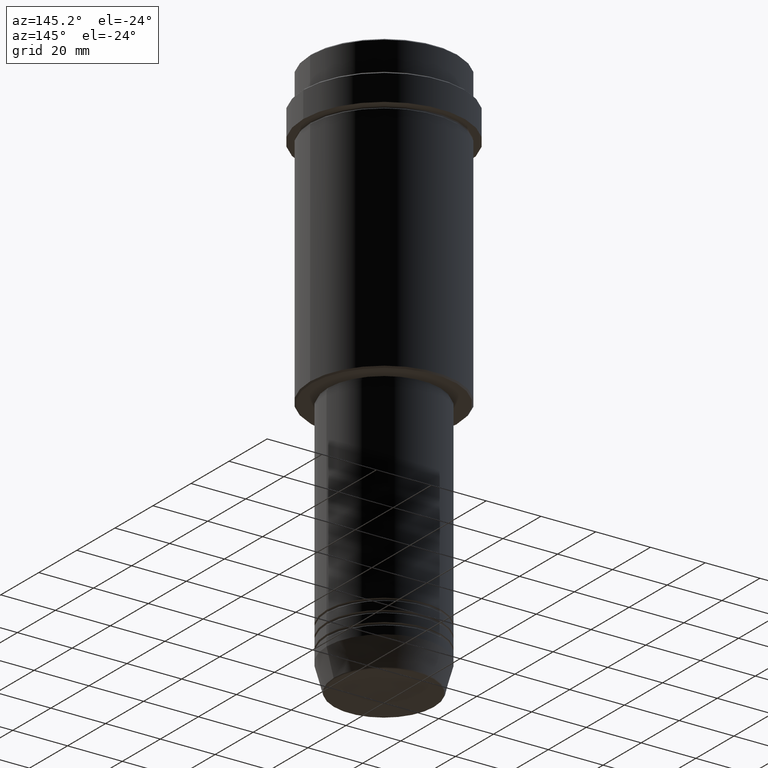
[diagram: clean part render]
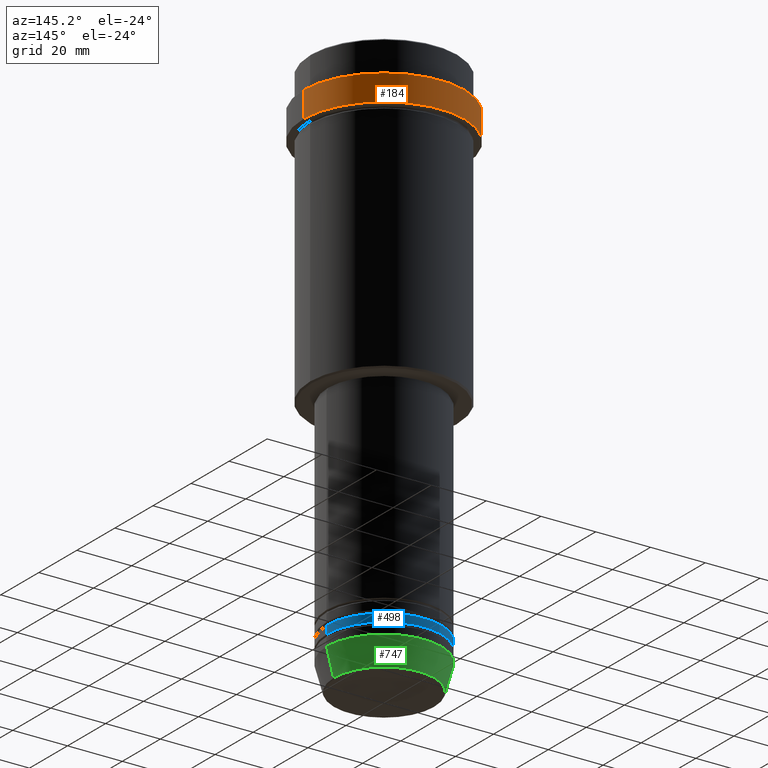
[diagram: same view with three faces highlighted in distinct colors, each labeled with its STEP entity id]
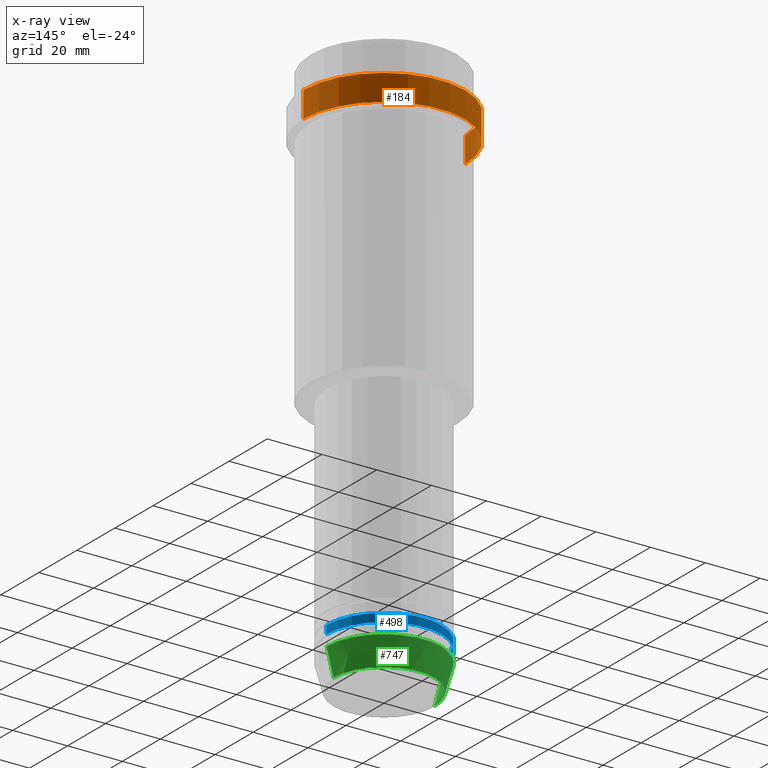
[diagram: x-ray of the same camera — body ghosted, the three highlighted faces saturated]
A machine part, auxiliary view with three faces highlighted in distinct colors.
The next image is the same camera in x-ray (body ghosted, the three faces saturated) — at least one of them is partly hidden behind the body in this view.
Their STEP definitions:

[orange] entity #184 — the highlighted cylindrical surface (partial cylindrical patch) has radius 29.5 mm, axis along (-0, -0, 1).
#12 = DIRECTION ( 'NONE',  ( 1.000000000000000000, 0.000000000000000000, 0.000000000000000000 ) ) ;
#72 = CARTESIAN_POINT ( 'NONE',  ( 0.000000000000000000, 0.000000000000000000, -22.00000000000000711 ) ) ;
#85 = DIRECTION ( 'NONE',  ( -0.000000000000000000, -0.000000000000000000, 1.000000000000000000 ) ) ;
#125 = VERTEX_POINT ( 'NONE', #458 ) ;
#168 = DIRECTION ( 'NONE',  ( 1.000000000000000000, 0.000000000000000000, 0.000000000000000000 ) ) ;
#184 = ADVANCED_FACE ( 'NONE', ( #896 ), #1240, .T. ) ;
#187 = AXIS2_PLACEMENT_3D ( 'NONE', #577, #1340, #168 ) ;
#192 = CIRCLE ( 'NONE', #299, 29.50000000000000000 ) ;
#236 = EDGE_CURVE ( 'NONE', #1013, #917, #1226, .T. ) ;
#262 = ORIENTED_EDGE ( 'NONE', *, *, #1293, .T. ) ;
#276 = AXIS2_PLACEMENT_3D ( 'NONE', #72, #85, #297 ) ;
#297 = DIRECTION ( 'NONE',  ( 1.000000000000000000, 0.000000000000000000, 0.000000000000000000 ) ) ;
#299 = AXIS2_PLACEMENT_3D ( 'NONE', #966, #320, #12 ) ;
#320 = DIRECTION ( 'NONE',  ( 0.000000000000000000, 0.000000000000000000, -1.000000000000000000 ) ) ;
#330 = VERTEX_POINT ( 'NONE', #1268 ) ;
#352 = DIRECTION ( 'NONE',  ( -0.000000000000000000, -0.000000000000000000, 1.000000000000000000 ) ) ;
#380 = CARTESIAN_POINT ( 'NONE',  ( -29.50000000000000000, 3.612708057484691604E-15, 0.000000000000000000 ) ) ;
#458 = CARTESIAN_POINT ( 'NONE',  ( 29.50000000000000000, 0.000000000000000000, -12.50000000000000355 ) ) ;
#496 = ORIENTED_EDGE ( 'NONE', *, *, #568, .F. ) ;
#568 = EDGE_CURVE ( 'NONE', #1013, #125, #789, .T. ) ;
#577 = CARTESIAN_POINT ( 'NONE',  ( 0.000000000000000000, 0.000000000000000000, 0.000000000000000000 ) ) ;
#651 = CARTESIAN_POINT ( 'NONE',  ( -29.49999999999999645, 3.612708057484690815E-15, -22.00000000000000711 ) ) ;
#789 = LINE ( 'NONE', #1016, #970 ) ;
#835 = ORIENTED_EDGE ( 'NONE', *, *, #236, .T. ) ;
#896 = FACE_OUTER_BOUND ( 'NONE', #1308, .T. ) ;
#917 = VERTEX_POINT ( 'NONE', #651 ) ;
#954 = DIRECTION ( 'NONE',  ( -0.000000000000000000, -0.000000000000000000, 1.000000000000000000 ) ) ;
#966 = CARTESIAN_POINT ( 'NONE',  ( 0.000000000000000000, 0.000000000000000000, -12.50000000000000355 ) ) ;
#970 = VECTOR ( 'NONE', #352, 1000.000000000000000 ) ;
#985 = CARTESIAN_POINT ( 'NONE',  ( 29.49999999999999645, 0.000000000000000000, -22.00000000000000711 ) ) ;
#1013 = VERTEX_POINT ( 'NONE', #985 ) ;
#1016 = CARTESIAN_POINT ( 'NONE',  ( 29.50000000000000000, 0.000000000000000000, 0.000000000000000000 ) ) ;
#1037 = ORIENTED_EDGE ( 'NONE', *, *, #1197, .T. ) ;
#1197 = EDGE_CURVE ( 'NONE', #917, #330, #1375, .T. ) ;
#1207 = VECTOR ( 'NONE', #954, 1000.000000000000000 ) ;
#1226 = CIRCLE ( 'NONE', #276, 29.49999999999999645 ) ;
#1240 = CYLINDRICAL_SURFACE ( 'NONE', #187, 29.50000000000000000 ) ;
#1268 = CARTESIAN_POINT ( 'NONE',  ( -29.50000000000000000, 3.612708057484691604E-15, -12.50000000000000355 ) ) ;
#1293 = EDGE_CURVE ( 'NONE', #330, #125, #192, .T. ) ;
#1308 = EDGE_LOOP ( 'NONE', ( #835, #1037, #262, #496 ) ) ;
#1340 = DIRECTION ( 'NONE',  ( -0.000000000000000000, -0.000000000000000000, 1.000000000000000000 ) ) ;
#1375 = LINE ( 'NONE', #380, #1207 ) ;

[blue] entity #498 — the highlighted cylindrical surface (partial cylindrical patch) has radius 21 mm, axis along (-0, -0, 1).
#86 = ORIENTED_EDGE ( 'NONE', *, *, #287, .F. ) ;
#148 = DIRECTION ( 'NONE',  ( 1.000000000000000000, 0.000000000000000000, 0.000000000000000000 ) ) ;
#165 = AXIS2_PLACEMENT_3D ( 'NONE', #867, #315, #759 ) ;
#166 = AXIS2_PLACEMENT_3D ( 'NONE', #344, #554, #148 ) ;
#287 = EDGE_CURVE ( 'NONE', #1290, #751, #488, .T. ) ;
#315 = DIRECTION ( 'NONE',  ( -0.000000000000000000, -0.000000000000000000, 1.000000000000000000 ) ) ;
#322 = CIRCLE ( 'NONE', #1048, 21.00000000000000000 ) ;
#344 = CARTESIAN_POINT ( 'NONE',  ( 0.000000000000000000, 0.000000000000000000, -185.9999999999998863 ) ) ;
#366 = EDGE_LOOP ( 'NONE', ( #946, #506, #940, #86 ) ) ;
#373 = VERTEX_POINT ( 'NONE', #1302 ) ;
#437 = FACE_OUTER_BOUND ( 'NONE', #366, .T. ) ;
#481 = VECTOR ( 'NONE', #1408, 1000.000000000000000 ) ;
#488 = LINE ( 'NONE', #1168, #607 ) ;
#498 = ADVANCED_FACE ( 'NONE', ( #437 ), #529, .T. ) ;
#506 = ORIENTED_EDGE ( 'NONE', *, *, #1404, .T. ) ;
#529 = CYLINDRICAL_SURFACE ( 'NONE', #165, 21.00000000000000000 ) ;
#531 = LINE ( 'NONE', #960, #481 ) ;
#554 = DIRECTION ( 'NONE',  ( -0.000000000000000000, -0.000000000000000000, 1.000000000000000000 ) ) ;
#607 = VECTOR ( 'NONE', #932, 1000.000000000000000 ) ;
#750 = CARTESIAN_POINT ( 'NONE',  ( 21.00000000000000000, 0.000000000000000000, -188.9999999999998863 ) ) ;
#751 = VERTEX_POINT ( 'NONE', #1367 ) ;
#759 = DIRECTION ( 'NONE',  ( 1.000000000000000000, 0.000000000000000000, 0.000000000000000000 ) ) ;
#764 = CARTESIAN_POINT ( 'NONE',  ( 0.000000000000000000, 0.000000000000000000, -188.9999999999998863 ) ) ;
#781 = DIRECTION ( 'NONE',  ( -0.000000000000000000, -0.000000000000000000, 1.000000000000000000 ) ) ;
#853 = CARTESIAN_POINT ( 'NONE',  ( -21.00000000000000000, 2.571758278209441661E-15, -185.9999999999998863 ) ) ;
#867 = CARTESIAN_POINT ( 'NONE',  ( 0.000000000000000000, 0.000000000000000000, 0.000000000000000000 ) ) ;
#932 = DIRECTION ( 'NONE',  ( -0.000000000000000000, -0.000000000000000000, 1.000000000000000000 ) ) ;
#939 = VERTEX_POINT ( 'NONE', #853 ) ;
#940 = ORIENTED_EDGE ( 'NONE', *, *, #1010, .F. ) ;
#946 = ORIENTED_EDGE ( 'NONE', *, *, #973, .T. ) ;
#960 = CARTESIAN_POINT ( 'NONE',  ( -21.00000000000000000, 2.571758278209441661E-15, 0.000000000000000000 ) ) ;
#973 = EDGE_CURVE ( 'NONE', #1290, #373, #322, .T. ) ;
#1010 = EDGE_CURVE ( 'NONE', #751, #939, #1229, .T. ) ;
#1048 = AXIS2_PLACEMENT_3D ( 'NONE', #764, #781, #1105 ) ;
#1105 = DIRECTION ( 'NONE',  ( 1.000000000000000000, 0.000000000000000000, 0.000000000000000000 ) ) ;
#1168 = CARTESIAN_POINT ( 'NONE',  ( 21.00000000000000000, 0.000000000000000000, 0.000000000000000000 ) ) ;
#1229 = CIRCLE ( 'NONE', #166, 21.00000000000000000 ) ;
#1290 = VERTEX_POINT ( 'NONE', #750 ) ;
#1302 = CARTESIAN_POINT ( 'NONE',  ( -21.00000000000000000, 2.571758278209441661E-15, -188.9999999999998863 ) ) ;
#1367 = CARTESIAN_POINT ( 'NONE',  ( 21.00000000000000000, 0.000000000000000000, -185.9999999999998863 ) ) ;
#1404 = EDGE_CURVE ( 'NONE', #373, #939, #531, .T. ) ;
#1408 = DIRECTION ( 'NONE',  ( -0.000000000000000000, -0.000000000000000000, 1.000000000000000000 ) ) ;

[green] entity #747 — the highlighted conical surface has half-angle 15 deg.
#62 = DIRECTION ( 'NONE',  ( -0.000000000000000000, -0.000000000000000000, 1.000000000000000000 ) ) ;
#95 = VECTOR ( 'NONE', #548, 1000.000000000000114 ) ;
#102 = ORIENTED_EDGE ( 'NONE', *, *, #1339, .F. ) ;
#117 = LINE ( 'NONE', #528, #95 ) ;
#139 = AXIS2_PLACEMENT_3D ( 'NONE', #326, #753, #426 ) ;
#161 = VERTEX_POINT ( 'NONE', #1220 ) ;
#255 = CONICAL_SURFACE ( 'NONE', #1045, 21.00000000000000000, 0.2617993877991499074 ) ;
#259 = AXIS2_PLACEMENT_3D ( 'NONE', #1195, #1103, #761 ) ;
#292 = ORIENTED_EDGE ( 'NONE', *, *, #931, .T. ) ;
#305 = VERTEX_POINT ( 'NONE', #1053 ) ;
#326 = CARTESIAN_POINT ( 'NONE',  ( 0.000000000000000000, 0.000000000000000000, -202.6294095225512990 ) ) ;
#387 = DIRECTION ( 'NONE',  ( 0.2588190451025211836, 0.000000000000000000, 0.9659258262890680902 ) ) ;
#402 = EDGE_CURVE ( 'NONE', #671, #837, #476, .T. ) ;
#426 = DIRECTION ( 'NONE',  ( 1.000000000000000000, 0.000000000000000000, 0.000000000000000000 ) ) ;
#476 = CIRCLE ( 'NONE', #139, 18.41980749484383040 ) ;
#525 = CARTESIAN_POINT ( 'NONE',  ( 21.00000000000000000, 0.000000000000000000, -193.0000000000000000 ) ) ;
#528 = CARTESIAN_POINT ( 'NONE',  ( -21.00000000000000000, 2.571758278209441661E-15, -193.0000000000000000 ) ) ;
#548 = DIRECTION ( 'NONE',  ( -0.2588190451025211836, 3.169619151431770488E-17, 0.9659258262890680902 ) ) ;
#671 = VERTEX_POINT ( 'NONE', #1388 ) ;
#747 = ADVANCED_FACE ( 'NONE', ( #1034 ), #255, .T. ) ;
#753 = DIRECTION ( 'NONE',  ( -0.000000000000000000, -0.000000000000000000, 1.000000000000000000 ) ) ;
#761 = DIRECTION ( 'NONE',  ( 1.000000000000000000, 0.000000000000000000, 0.000000000000000000 ) ) ;
#820 = VECTOR ( 'NONE', #387, 1000.000000000000114 ) ;
#837 = VERTEX_POINT ( 'NONE', #1068 ) ;
#887 = LINE ( 'NONE', #525, #820 ) ;
#931 = EDGE_CURVE ( 'NONE', #837, #305, #117, .T. ) ;
#955 = EDGE_LOOP ( 'NONE', ( #1001, #292, #102, #1006 ) ) ;
#1001 = ORIENTED_EDGE ( 'NONE', *, *, #402, .T. ) ;
#1006 = ORIENTED_EDGE ( 'NONE', *, *, #1122, .F. ) ;
#1034 = FACE_OUTER_BOUND ( 'NONE', #955, .T. ) ;
#1045 = AXIS2_PLACEMENT_3D ( 'NONE', #1152, #62, #1267 ) ;
#1053 = CARTESIAN_POINT ( 'NONE',  ( -21.00000000000000000, 2.571758278209441661E-15, -193.0000000000000000 ) ) ;
#1068 = CARTESIAN_POINT ( 'NONE',  ( -18.41980749484383040, 2.413767053578267064E-15, -202.6294095225512990 ) ) ;
#1103 = DIRECTION ( 'NONE',  ( -0.000000000000000000, -0.000000000000000000, 1.000000000000000000 ) ) ;
#1122 = EDGE_CURVE ( 'NONE', #671, #161, #887, .T. ) ;
#1152 = CARTESIAN_POINT ( 'NONE',  ( 0.000000000000000000, 0.000000000000000000, -193.0000000000000000 ) ) ;
#1164 = CIRCLE ( 'NONE', #259, 21.00000000000000000 ) ;
#1195 = CARTESIAN_POINT ( 'NONE',  ( 0.000000000000000000, 0.000000000000000000, -193.0000000000000000 ) ) ;
#1220 = CARTESIAN_POINT ( 'NONE',  ( 21.00000000000000000, 0.000000000000000000, -193.0000000000000000 ) ) ;
#1267 = DIRECTION ( 'NONE',  ( 1.000000000000000000, 0.000000000000000000, 0.000000000000000000 ) ) ;
#1339 = EDGE_CURVE ( 'NONE', #161, #305, #1164, .T. ) ;
#1388 = CARTESIAN_POINT ( 'NONE',  ( 18.41980749484383040, 0.000000000000000000, -202.6294095225512990 ) ) ;